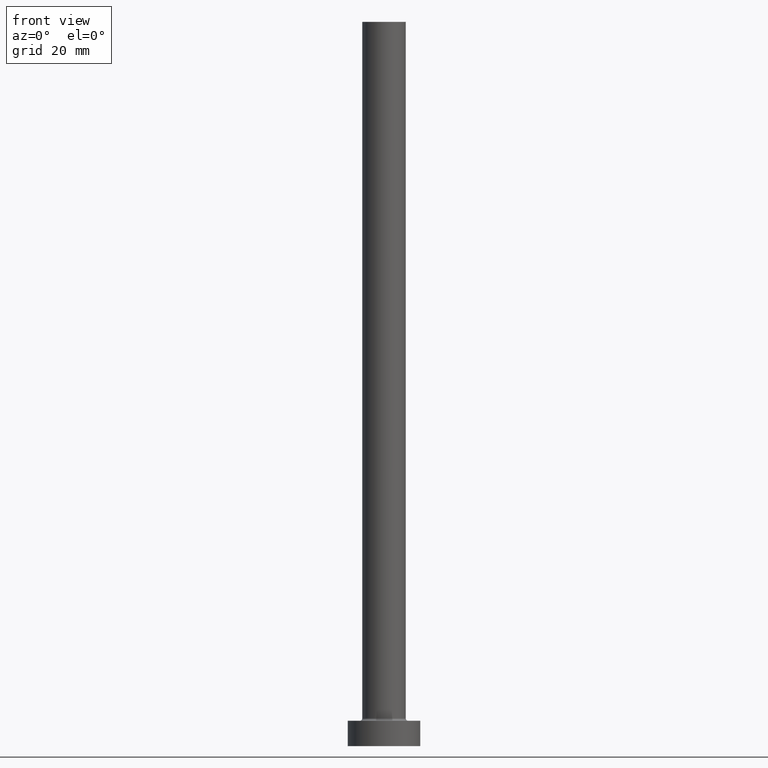
[diagram: clean part render]
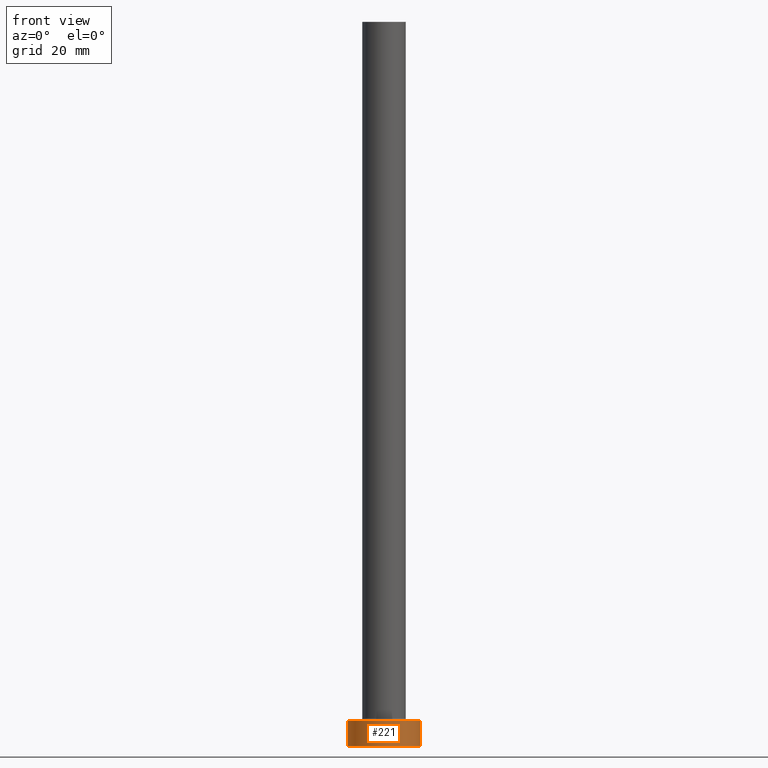
[diagram: same view with one face highlighted and labeled with its STEP entity id]
A machine part, front view. The second image highlights one B-rep face of the part: STEP entity #221.
In plain terms, the highlighted cylindrical surface (edge-blend (fillet) strip) has radius 10 mm, axis along (-0, -0, -1).
Its self-contained STEP definition (entity closure, byte-faithful):
#17 = CARTESIAN_POINT ( 'NONE',  ( 10.00000000000000000, 1.224646799147353256E-15, 7.000000000000000000 ) ) ;
#24 = CARTESIAN_POINT ( 'NONE',  ( 0.000000000000000000, 0.000000000000000000, 0.000000000000000000 ) ) ;
#31 = LINE ( 'NONE', #212, #355 ) ;
#33 = AXIS2_PLACEMENT_3D ( 'NONE', #255, #403, #43 ) ;
#43 = DIRECTION ( 'NONE',  ( 1.000000000000000000, 0.000000000000000000, 0.000000000000000000 ) ) ;
#57 = EDGE_CURVE ( 'NONE', #371, #321, #31, .T. ) ;
#92 = EDGE_LOOP ( 'NONE', ( #335, #131, #173, #415 ) ) ;
#103 = VERTEX_POINT ( 'NONE', #262 ) ;
#114 = DIRECTION ( 'NONE',  ( -0.000000000000000000, -0.000000000000000000, -1.000000000000000000 ) ) ;
#122 = DIRECTION ( 'NONE',  ( -1.000000000000000000, 0.000000000000000000, 0.000000000000000000 ) ) ;
#125 = VERTEX_POINT ( 'NONE', #404 ) ;
#130 = EDGE_CURVE ( 'NONE', #125, #371, #203, .T. ) ;
#131 = ORIENTED_EDGE ( 'NONE', *, *, #130, .F. ) ;
#155 = AXIS2_PLACEMENT_3D ( 'NONE', #24, #199, #190 ) ;
#160 = DIRECTION ( 'NONE',  ( -0.000000000000000000, -0.000000000000000000, -1.000000000000000000 ) ) ;
#162 = FACE_OUTER_BOUND ( 'NONE', #92, .T. ) ;
#173 = ORIENTED_EDGE ( 'NONE', *, *, #313, .T. ) ;
#190 = DIRECTION ( 'NONE',  ( 1.000000000000000000, 0.000000000000000000, 0.000000000000000000 ) ) ;
#199 = DIRECTION ( 'NONE',  ( 0.000000000000000000, 0.000000000000000000, 1.000000000000000000 ) ) ;
#203 = CIRCLE ( 'NONE', #33, 10.00000000000000000 ) ;
#212 = CARTESIAN_POINT ( 'NONE',  ( 10.00000000000000000, 1.224646799147353256E-15, 7.000000000000000000 ) ) ;
#221 = ADVANCED_FACE ( 'NONE', ( #162 ), #408, .T. ) ;
#233 = CARTESIAN_POINT ( 'NONE',  ( -10.00000000000000000, 0.000000000000000000, 7.000000000000000000 ) ) ;
#255 = CARTESIAN_POINT ( 'NONE',  ( 0.000000000000000000, 0.000000000000000000, 7.000000000000000000 ) ) ;
#262 = CARTESIAN_POINT ( 'NONE',  ( -10.00000000000000000, 0.000000000000000000, 0.000000000000000000 ) ) ;
#284 = CIRCLE ( 'NONE', #155, 10.00000000000000000 ) ;
#301 = CARTESIAN_POINT ( 'NONE',  ( 0.000000000000000000, 0.000000000000000000, 7.000000000000000000 ) ) ;
#304 = CARTESIAN_POINT ( 'NONE',  ( 10.00000000000000000, 1.224646799147353256E-15, 0.000000000000000000 ) ) ;
#305 = EDGE_CURVE ( 'NONE', #103, #321, #284, .T. ) ;
#309 = AXIS2_PLACEMENT_3D ( 'NONE', #301, #445, #122 ) ;
#313 = EDGE_CURVE ( 'NONE', #125, #103, #414, .T. ) ;
#321 = VERTEX_POINT ( 'NONE', #304 ) ;
#333 = VECTOR ( 'NONE', #160, 1000.000000000000000 ) ;
#335 = ORIENTED_EDGE ( 'NONE', *, *, #57, .F. ) ;
#355 = VECTOR ( 'NONE', #114, 1000.000000000000000 ) ;
#371 = VERTEX_POINT ( 'NONE', #17 ) ;
#403 = DIRECTION ( 'NONE',  ( 0.000000000000000000, 0.000000000000000000, 1.000000000000000000 ) ) ;
#404 = CARTESIAN_POINT ( 'NONE',  ( -10.00000000000000000, 0.000000000000000000, 7.000000000000000000 ) ) ;
#408 = CYLINDRICAL_SURFACE ( 'NONE', #309, 10.00000000000000000 ) ;
#414 = LINE ( 'NONE', #233, #333 ) ;
#415 = ORIENTED_EDGE ( 'NONE', *, *, #305, .T. ) ;
#445 = DIRECTION ( 'NONE',  ( -0.000000000000000000, -0.000000000000000000, -1.000000000000000000 ) ) ;